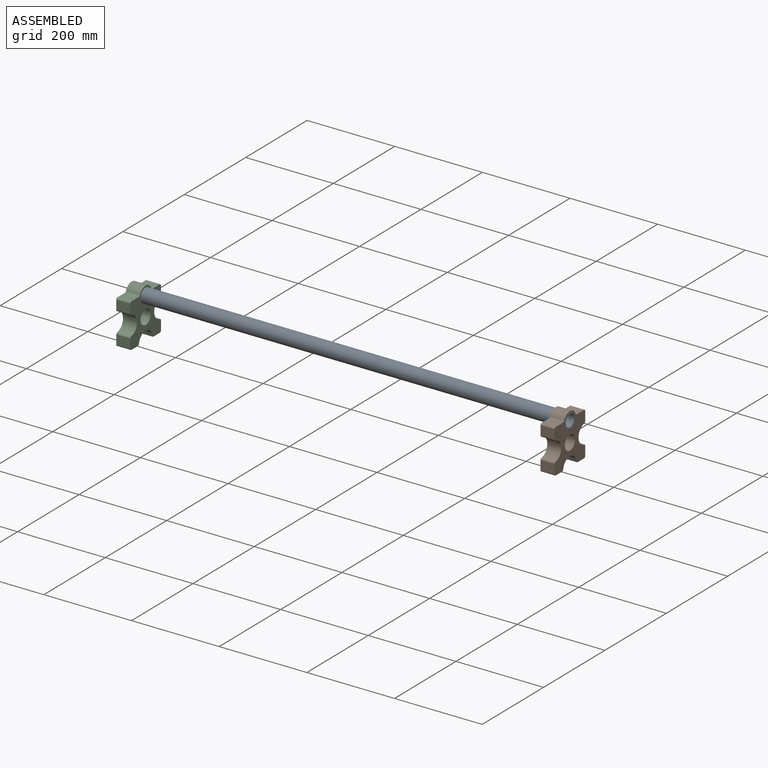
[diagram: assembled view]
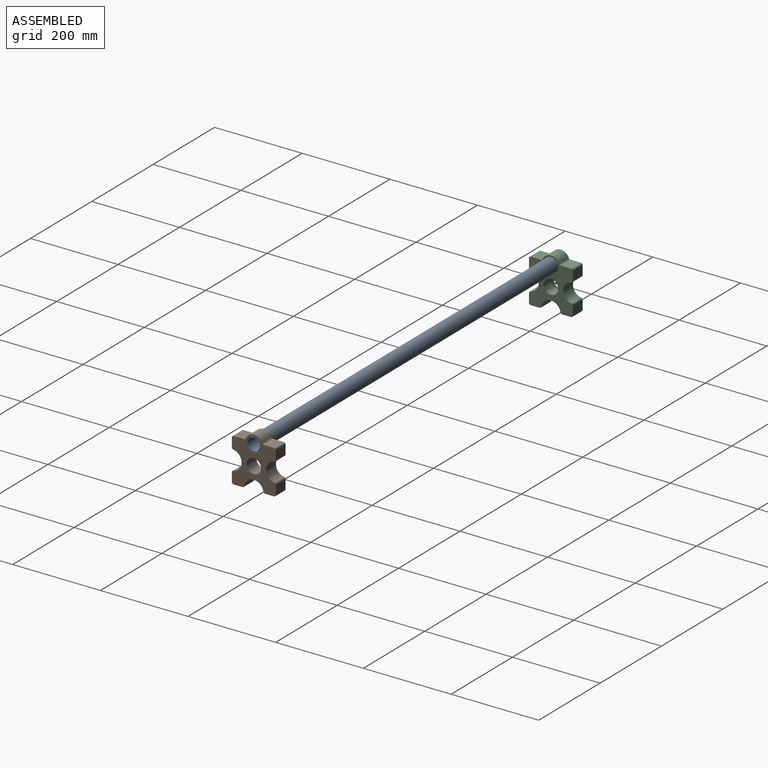
[diagram: assembled view, second angle]
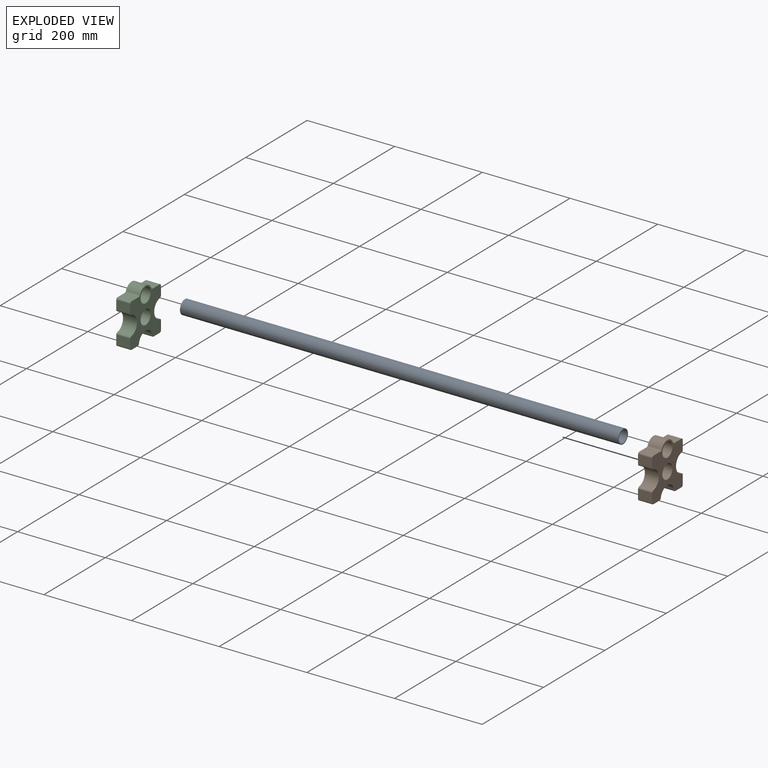
[diagram: exploded view]
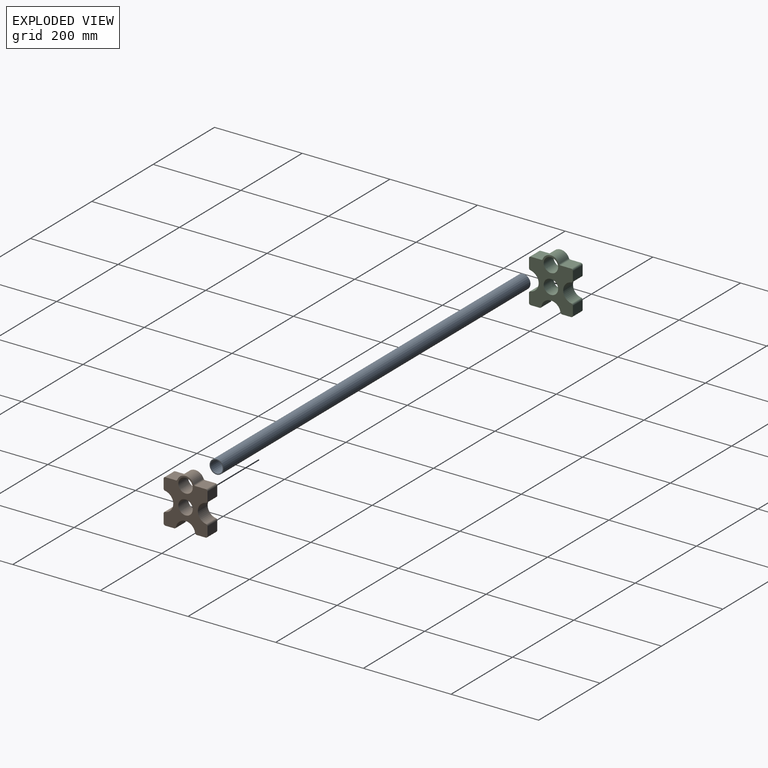
[diagram: exploded view, second angle]
ASSEMBLY  parts=3 mates=2
PART A: 4 faces, bbox 1000x32x32 mm
  f0: cylinder r=14mm len=1000mm, axis (-1,0,0), area 87964.6mm2, adj f2,f3
  f1: cylinder r=16mm len=1000mm, axis (-1,0,0), area 100531mm2, adj f2,f3
  f2: plane 32x32mm, normal (1,0,0), area 188.5mm2, adj f0,f1
  f3: plane 32x32mm, normal (-1,0,0), area 188.5mm2, adj f0,f1
PART B: 28 faces, bbox 100x32x115 mm
  f0: cylinder r=20mm len=37.08mm, axis (0,1,0), area 1518.6mm2, adj f14,f15,f16,f27
  f1: plane 32x23.75mm, normal (0,0,1), area 760mm2, adj f14,f15,f16,f17
  f2: plane 32x20.31mm, normal (-1,0,0), area 649.9mm2, adj f14,f15,f17,f18
  f3: cylinder r=22mm len=43.48mm, axis (0,1,0), area 1994.2mm2, adj f14,f15,f18,f19
  f4: plane 32x20.31mm, normal (-1,0,0), area 649.9mm2, adj f14,f15,f19,f20
  f5: plane 32x20.31mm, normal (0,0,-1), area 649.9mm2, adj f14,f15,f20,f21
  f6: cylinder r=22mm len=43.48mm, axis (0,1,0), area 1994.2mm2, adj f14,f15,f21,f22
  f7: plane 32x20.31mm, normal (0,0,-1), area 649.9mm2, adj f14,f15,f22,f23
  f8: plane 32x20.31mm, normal (1,0,0), area 649.9mm2, adj f14,f15,f23,f24
  f9: cylinder r=22mm len=43.48mm, axis (0,1,0), area 1994.2mm2, adj f14,f15,f24,f25
  f10: plane 32x20.31mm, normal (1,0,0), area 649.9mm2, adj f14,f15,f25,f26
  f11: cylinder r=16.4mm len=32.8mm, axis (0,1,0), area 3297.4mm2, adj f14,f15
  f12: cylinder r=16.4mm len=32.8mm, axis (0,1,0), area 3297.4mm2, adj f14,f15
  f13: plane 32x23.75mm, normal (0,0,1), area 760mm2, adj f14,f15,f26,f27
  f14: plane 115x100mm, normal (0,-1,0), area 6432.8mm2, adj f0,f1,f2,f3,f4,f5,f6,f7
  f15: plane 115x100mm, normal (0,1,0), area 6432.8mm2, adj f0,f1,f2,f3,f4,f5,f6,f7
  f16: cylinder r=4mm len=32mm, axis (0,1,0), area 151.9mm2, adj f0,f1,f14,f15
  f17: cylinder r=4mm len=32mm, axis (0,-1,0), area 201.1mm2, adj f1,f2,f14,f15
  f18: cylinder r=4mm len=32mm, axis (0,1,0), area 181.3mm2, adj f2,f3,f14,f15
  f19: cylinder r=4mm len=32mm, axis (0,1,0), area 181.3mm2, adj f3,f4,f14,f15
  f20: cylinder r=4mm len=32mm, axis (0,1,0), area 201.1mm2, adj f4,f5,f14,f15
  f21: cylinder r=4mm len=32mm, axis (0,1,0), area 181.3mm2, adj f5,f6,f14,f15
  f22: cylinder r=4mm len=32mm, axis (0,1,0), area 181.3mm2, adj f6,f7,f14,f15
  f23: cylinder r=4mm len=32mm, axis (0,-1,0), area 201.1mm2, adj f7,f8,f14,f15
  f24: cylinder r=4mm len=32mm, axis (0,1,0), area 181.3mm2, adj f8,f9,f14,f15
  f25: cylinder r=4mm len=32mm, axis (0,1,0), area 181.3mm2, adj f9,f10,f14,f15
  f26: cylinder r=4mm len=32mm, axis (0,1,0), area 201.1mm2, adj f10,f13,f14,f15
  f27: cylinder r=4mm len=32mm, axis (0,1,0), area 151.9mm2, adj f0,f13,f14,f15
PART C: same geometry as B
PLACE A at identity fixed
PLACE B rot(axis=(0,0,1),90deg) t=(484,0,-45)mm
PLACE C rot(axis=(0,0,1),90deg) t=(-484,0,-45)mm
MATE revolute A.f0 <-> C.f0  axis (-1,0,0) through (-500,0,0)mm
MATE fastened A.f0 <-> B.f0  axis (-1,0,0) through (500,0,0)mm
